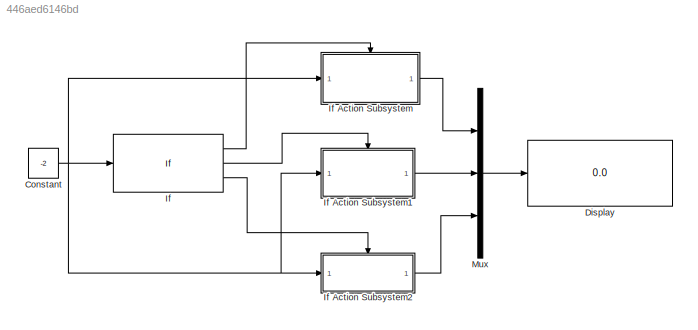
MODEL slx_446aed6146bd
KIND model
CONFIG AbsTol = auto
CONFIG EnableMultiTasking = off
CONFIG FixedStep = auto
CONFIG MaxStep = auto
CONFIG MinStep = auto
CONFIG RelTol = 1e-3
CONFIG SampleTimeConstraint = Unconstrained
CONFIG Solver = VariableStepAuto
CONFIG SolverName = VariableStepAuto
CONFIG StartTime = 0.0
CONFIG StopTime = 10.0
BLOCK [Constant] Constant
  Value = -2
BLOCK [Display] Display
  Decimation = 1
  Ports = [1]
BLOCK [If] If
  ElseIfExpressions = u1<10 & u1>0
  IfExpression = u1>=10
  Ports = [1, 3]
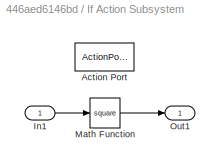
BLOCK [SubSystem] If Action Subsystem
  Ports = [1, 1, 0, 0, 0, 0, 0, 1]
  RequestExecContextInheritance = off
  TreatAsAtomicUnit = on
BLOCK [ActionPort] If Action Subsystem/Action Port
  ActionPortLabel = if(u1>=10)
BLOCK [Inport] If Action Subsystem/In1
BLOCK [Math] If Action Subsystem/Math Function
  Operator = square
  Ports = [1, 1]
BLOCK [Outport] If Action Subsystem/Out1
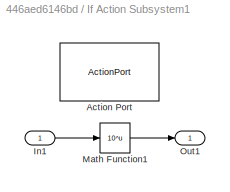
BLOCK [SubSystem] If Action Subsystem1
  Ports = [1, 1, 0, 0, 0, 0, 0, 1]
  RequestExecContextInheritance = off
  TreatAsAtomicUnit = on
BLOCK [ActionPort] If Action Subsystem1/Action Port
  ActionPortLabel = elseif(u1<10 & u1>0)
BLOCK [Inport] If Action Subsystem1/In1
BLOCK [Math] If Action Subsystem1/Math Function1
  Operator = 10^u
  Ports = [1, 1]
BLOCK [Outport] If Action Subsystem1/Out1
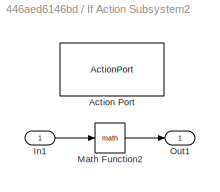
BLOCK [SubSystem] If Action Subsystem2
  Ports = [1, 1, 0, 0, 0, 0, 0, 1]
  RequestExecContextInheritance = off
  TreatAsAtomicUnit = on
BLOCK [ActionPort] If Action Subsystem2/Action Port
  ActionPortLabel = else
BLOCK [Inport] If Action Subsystem2/In1
BLOCK [Math] If Action Subsystem2/Math Function2
  Ports = [1, 1]
BLOCK [Outport] If Action Subsystem2/Out1
BLOCK [Mux] Mux
  DisplayOption = bar
  Inputs = 3
  Ports = [3, 1]
NET Constant:1 -> If Action Subsystem1:1, If Action Subsystem2:1, If Action Subsystem:1, If:1
LINE If Action Subsystem/In1:1 -> If Action Subsystem/Math Function:1
LINE If Action Subsystem/Math Function:1 -> If Action Subsystem/Out1:1
LINE If Action Subsystem1/In1:1 -> If Action Subsystem1/Math Function1:1
LINE If Action Subsystem1/Math Function1:1 -> If Action Subsystem1/Out1:1
LINE If Action Subsystem1:1 -> Mux:2
LINE If Action Subsystem2/In1:1 -> If Action Subsystem2/Math Function2:1
LINE If Action Subsystem2/Math Function2:1 -> If Action Subsystem2/Out1:1
LINE If Action Subsystem2:1 -> Mux:3
LINE If Action Subsystem:1 -> Mux:1
LINE If:1 -> If Action Subsystem:ifaction
LINE If:2 -> If Action Subsystem1:ifaction
LINE If:3 -> If Action Subsystem2:ifaction
LINE Mux:1 -> Display:1
note: NET lines group one-source signal fan-out (src -> all destinations, sorted); 1:1 wires keep LINE
